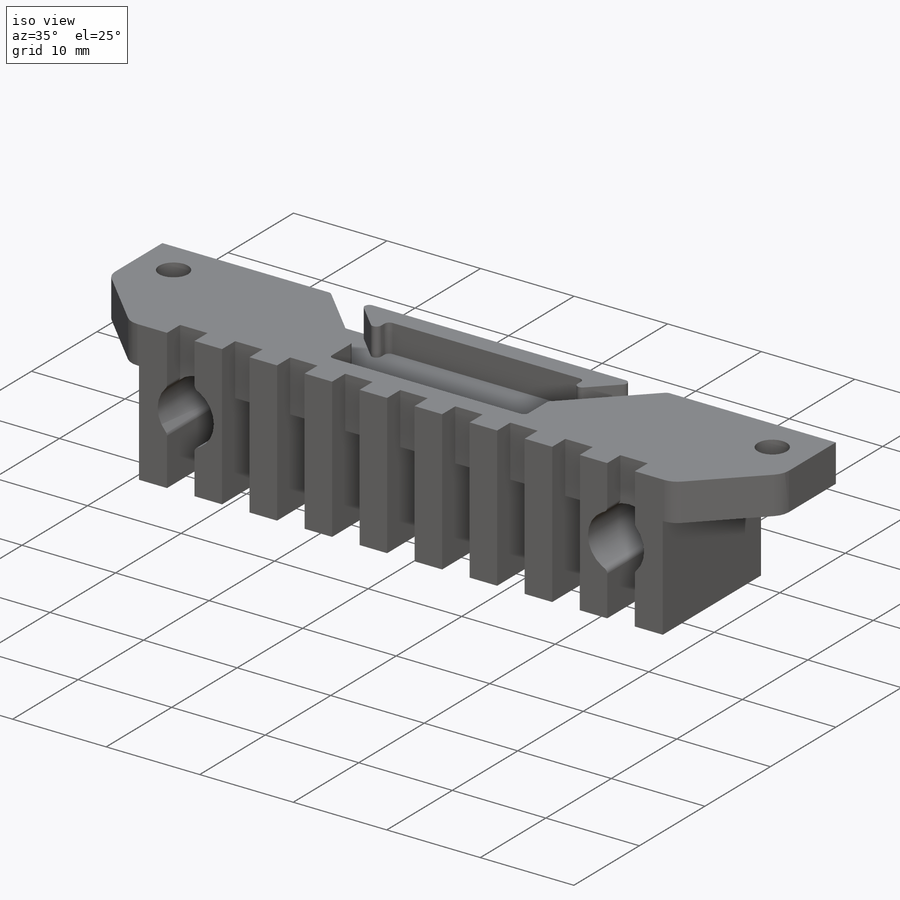
[diagram: iso view]
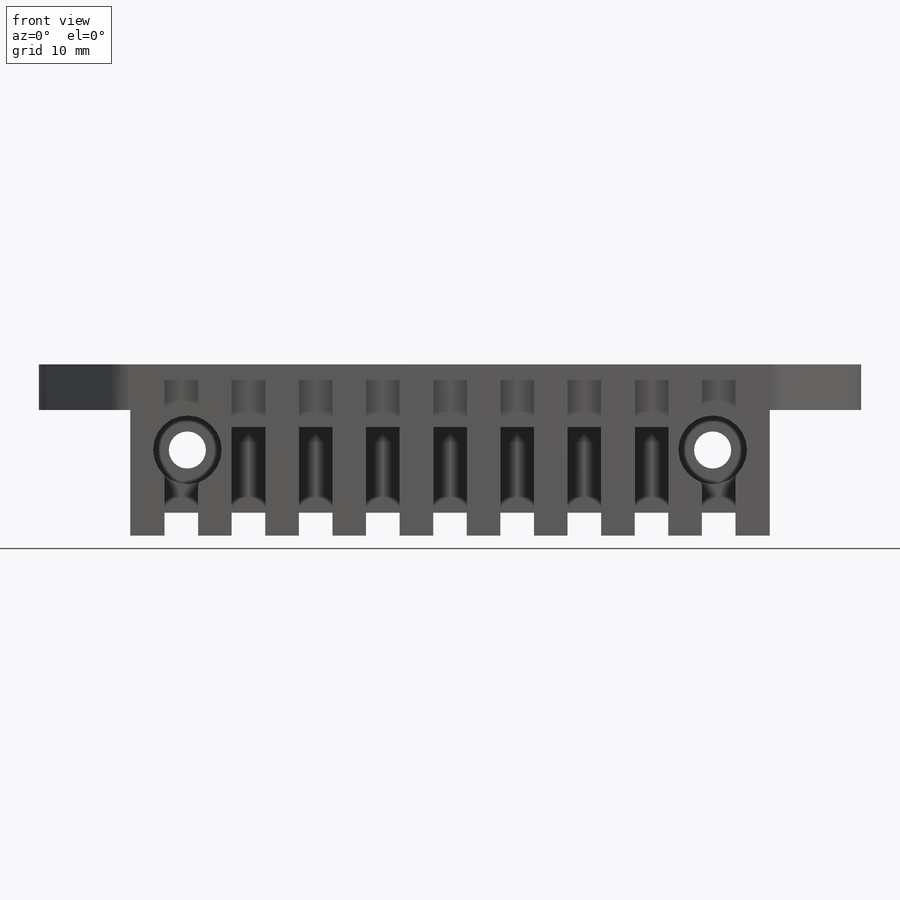
[diagram: front view]
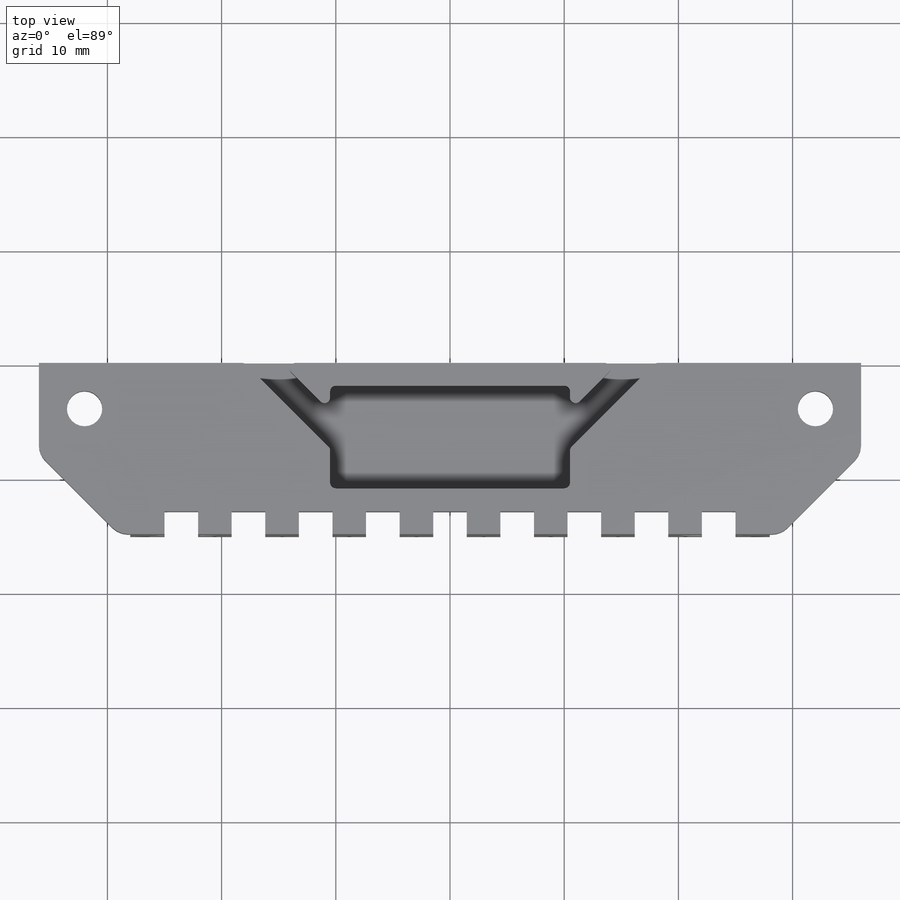
[diagram: top view]
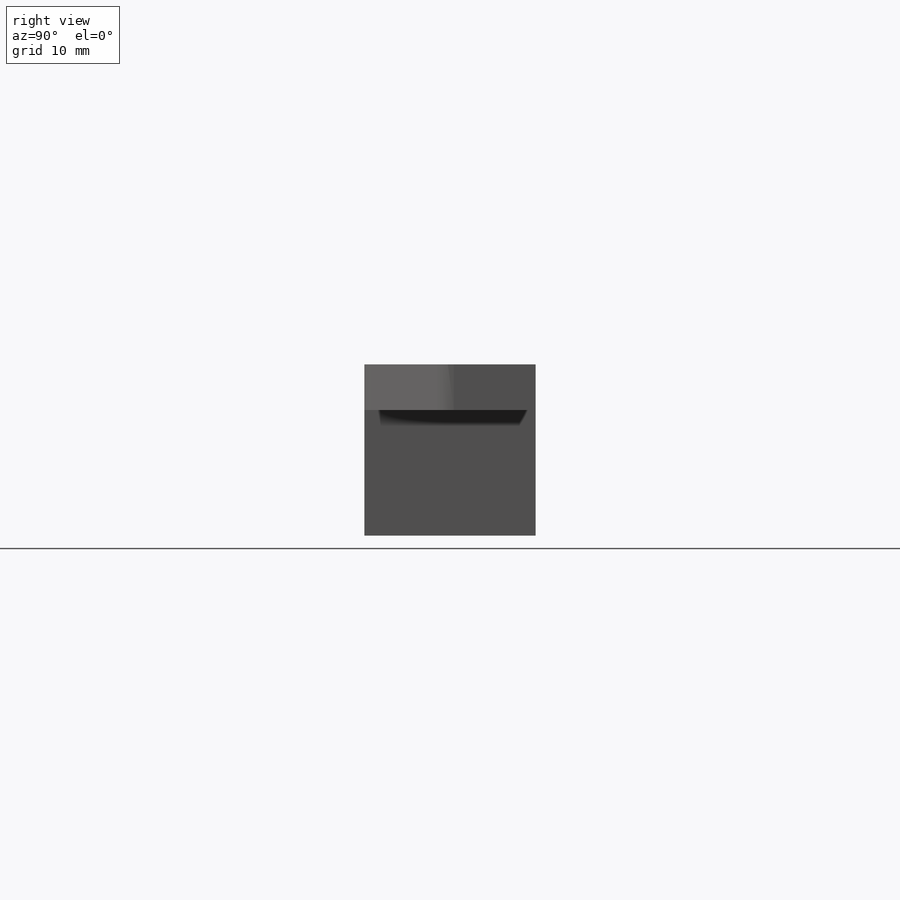
[diagram: right view]
SOLIDWORKS PART (.sldprt)
format: sldprt  version: not decoded by parser v0  size: 618,496 bytes
history: native  units: mm
features: sketch x10, cut_extrude x7, plane x3, extrude x3, fillet x3, material x1, chamfer x1 (+10 scaffold rows collapsed)
feature tree (38):
  scaffold x10  (default folders/planes/origin — collapsed)
  material  "Matériau <non spécifié>"
  plane  "Plan de face"
  plane  "Plan de dessus"
  plane  "Plan de droite"
  sketch  "Esquisse1"  dims[D1=50.0mm D2=15.0mm]
  extrude  "Boss.-Extru.1"  Depth=15mm
  sketch  "Esquisse3"  dims[D1=2.63mm D2=5.5mm D3=9.0]
  cut_extrude  "Enlèv. mat.-Extru.1"  Depth=9.5mm
  sketch  "Esquisse4"  dims[D2=2.0mm D1=9.0]
  cut_extrude  "Enlèv. mat.-Extru.2"  Depth=10mm
  sketch  "Esquisse5"  dims[D2=2.0mm D1=9.0]
  cut_extrude  "Enlèv. mat.-Extru.3"  Depth=10mm
  sketch  "Esquisse6"  dims[D1=56.0mm]
  extrude  "Boss.-Extru.2"  Depth=15mm
  sketch  "Esquisse7"  dims[D2=3.25mm D1=23.0mm]
  cut_extrude  "Enlèv. mat.-Extru.4"  [1 undecoded]
  sketch  "Esquisse8"  dims[D1=6.0mm D2=6.0mm D3=1.5mm]
  cut_extrude  "Enlèv. mat.-Extru.5"  Depth=12mm
  sketch  "Esquisse9"  dims[D1=9.0mm D2=21.0mm D3=~13.529412mm]
  cut_extrude  "Enlèv. mat.-Extru.6"  Depth=3mm
  sketch  "Esquisse11"  dims[D1=~14.72715mm D2=~3.27285mm]
  cut_extrude  "Enlèv. mat.-Extru.7"  Depth=3mm
  fillet  "Congé13"  Radius=0.5mm
  fillet  "Congé16"  Radius=0.5mm
  sketch  "Esquisse12"  dims[D2=3.1mm D1=8.0mm]
  extrude  "Boss.-Extru.3"  Depth=4mm
  chamfer  "Chanfrein1"  Distance=8mm Angle=45deg
  fillet  "Congé17"  Radius=2mm
decode coverage: 23 of 24 modeling features carry decoded parameters
note: ~ marks probable driven/reference dimensions
note: 1 parameter value undecoded
note: suppression state not decoded; provenance and decode notes live in map.json
